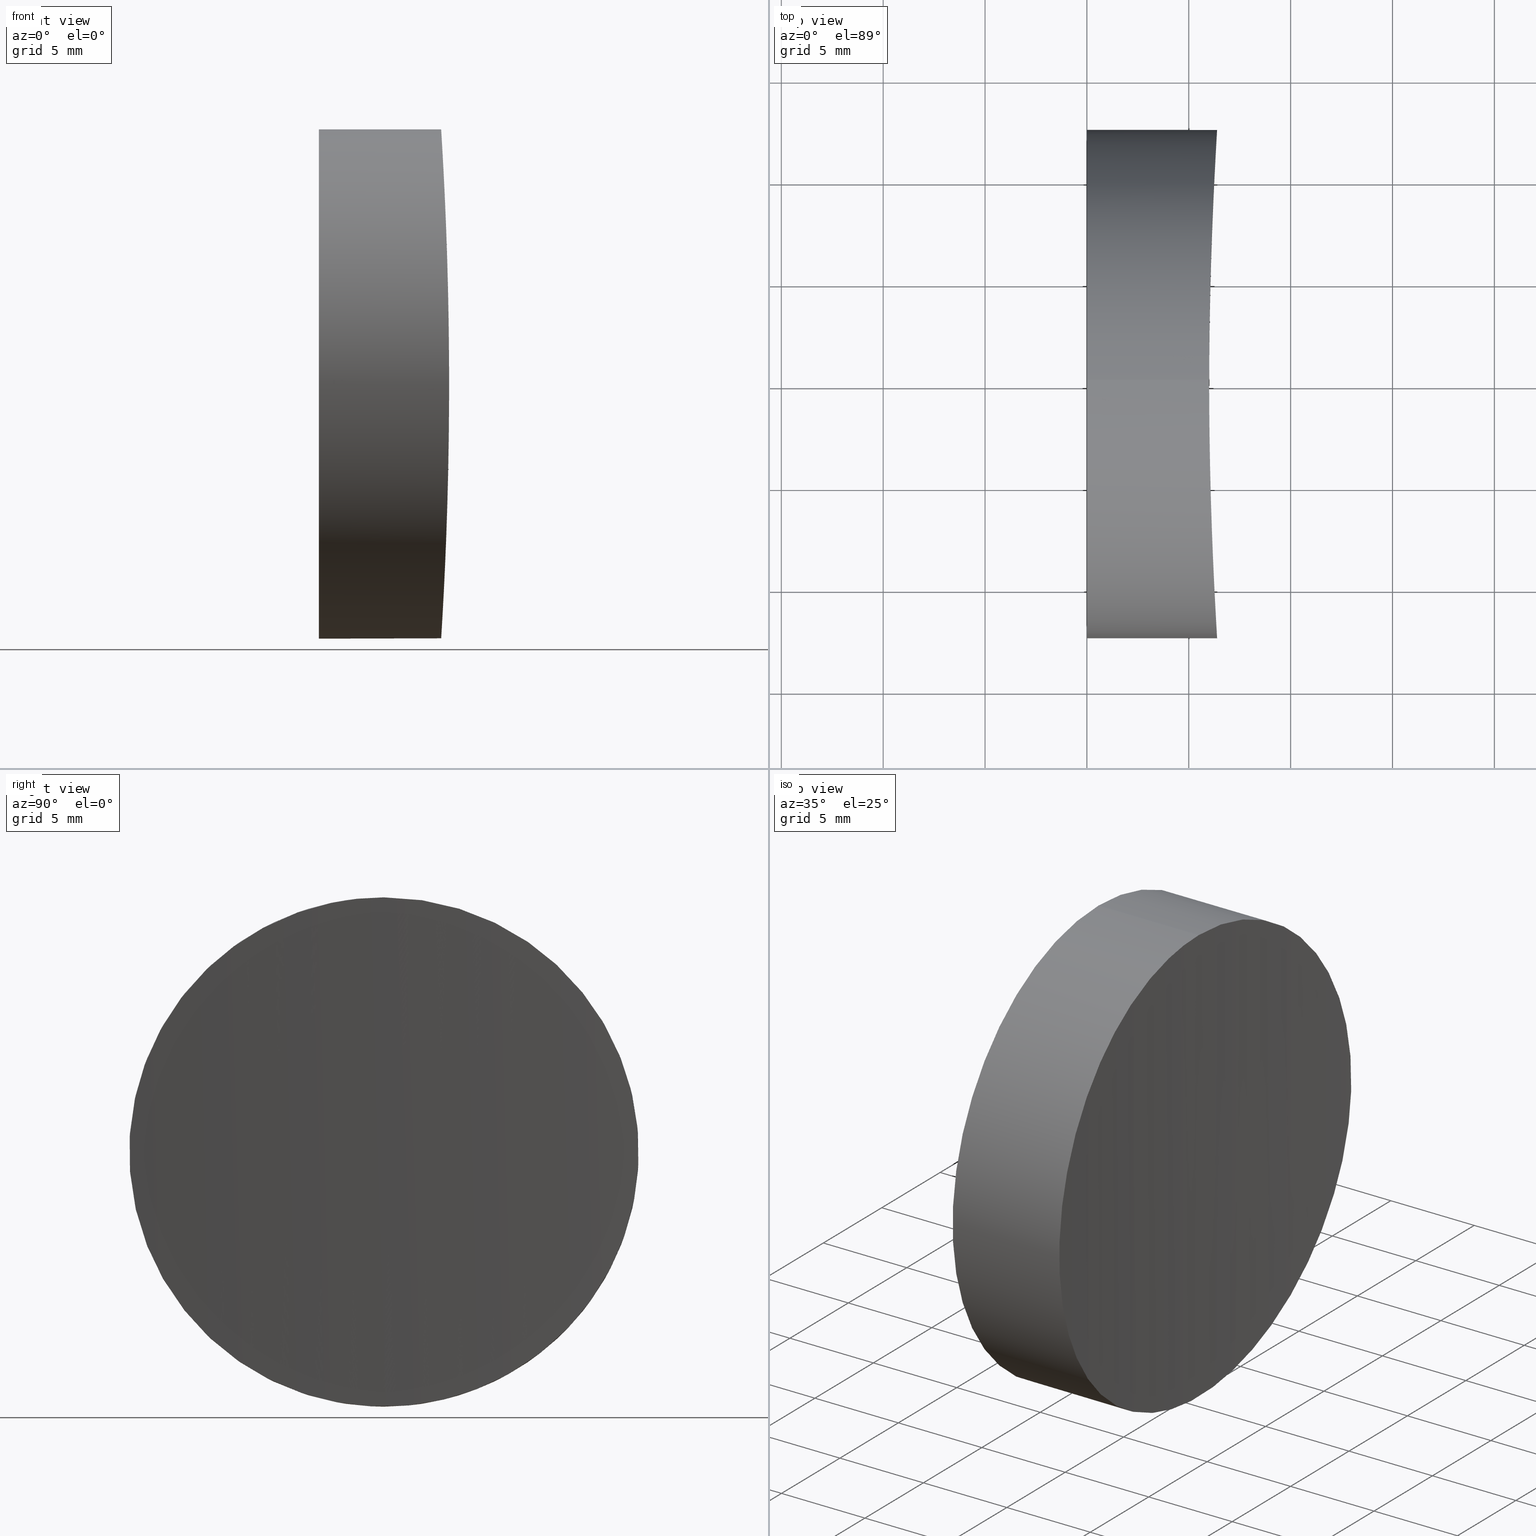
[diagram: canonical four-view strip — front | top / right | iso, engineering-drawing reading convention]
A machine part, canonical four-view strip (front | top / right | iso — engineering-drawing reading convention). The complete STEP part file that produces these views, byte-faithful:
ISO-10303-21;
HEADER;
FILE_DESCRIPTION (( 'STEP AP203' ),
    '1' );
FILE_NAME ('280011.STEP',
    '2022-07-05T10:00:19',
    ( '' ),
    ( '' ),
    'SwSTEP 2.0',
    'SolidWorks 2020',
    '' );
FILE_SCHEMA (( 'CONFIG_CONTROL_DESIGN' ));
ENDSEC;

DATA;
#1 = COORDINATED_UNIVERSAL_TIME_OFFSET ( 8, 0, .AHEAD. ) ;
#2 = CARTESIAN_POINT ( 'NONE',  ( 6.097124344311586341, -6.242635368739844814, -10.83727719118688171 ) ) ;
#3 = PERSON_AND_ORGANIZATION ( #116, #117 ) ;
#4 = CARTESIAN_POINT ( 'NONE',  ( 6.006322558949565682, 1.642385855301091935, -12.39849435308540926 ) ) ;
#5 = DATE_AND_TIME ( #168, #150 ) ;
#6 = CARTESIAN_POINT ( 'NONE',  ( 6.385955377215135620, 12.42010764118228749, 1.633293504442068445 ) ) ;
#7 = VERTEX_POINT ( 'NONE', #108 ) ;
#8 = MANIFOLD_SOLID_BREP ( '�г�-����1', #217 ) ;
#9 = CARTESIAN_POINT ( 'NONE',  ( 6.076449310142732152, -5.541154197611496635, 11.21218961334392716 ) ) ;
#10 = DIRECTION ( 'NONE',  ( -1.000000000000000000, -0.000000000000000000, -0.000000000000000000 ) ) ;
#11 = UNCERTAINTY_MEASURE_WITH_UNIT (LENGTH_MEASURE( 1.000000000000000082E-05 ), #110, 'distance_accuracy_value', 'NONE');
#12 = CC_DESIGN_APPROVAL ( #83, ( #90 ) ) ;
#13 = DATE_AND_TIME ( #69, #181 ) ;
#14 = FACE_OUTER_BOUND ( 'NONE', #143, .T. ) ;
#15 = COORDINATED_UNIVERSAL_TIME_OFFSET ( 8, 0, .AHEAD. ) ;
#16 = DIRECTION ( 'NONE',  ( 1.000000000000000000, 0.000000000000000000, 0.000000000000000000 ) ) ;
#17 = CARTESIAN_POINT ( 'NONE',  ( 6.066361212012791881, 5.165607069838403120, -11.39010407202158248 ) ) ;
#18 = CARTESIAN_POINT ( 'NONE',  ( 6.010098796989793435, 2.049340621478684898, -12.33762393279232406 ) ) ;
#19 = APPROVAL ( #142, 'δָ��' ) ;
#20 = DATE_AND_TIME ( #185, #72 ) ;
#21 = CYLINDRICAL_SURFACE ( 'NONE', #126, 200.0000000000000000 ) ;
#22 = CARTESIAN_POINT ( 'NONE',  ( 6.390979679797923474, 12.49956027233291245, 0.8221274762080637011 ) ) ;
#23 = CARTESIAN_POINT ( 'NONE',  ( 6.109071566344343118, 6.612967445553753265, -10.61528993956557976 ) ) ;
#24 = CARTESIAN_POINT ( 'NONE',  ( 6.000000000000006217, -6.505213034913026604E-16, 12.50000000000000000 ) ) ;
#25 = CARTESIAN_POINT ( 'NONE',  ( 6.026121852739023232, -3.255898834232719974, 12.07543384286811872 ) ) ;
#26 = ADVANCED_BREP_SHAPE_REPRESENTATION ( '280011', ( #8, #141 ), #53 ) ;
#27 = CARTESIAN_POINT ( 'NONE',  ( 6.039980745927377548, 4.018079192936921729, 11.84370772035140895 ) ) ;
#28 = CARTESIAN_POINT ( 'NONE',  ( 6.281964060546943784, 10.61877824392289860, 6.607602650338285422 ) ) ;
#29 = APPROVAL_PERSON_ORGANIZATION ( #73, #19, #154 ) ;
#30 = DIRECTION ( 'NONE',  ( 1.000000000000000000, 0.000000000000000000, 0.000000000000000000 ) ) ;
#31 = CARTESIAN_POINT ( 'NONE',  ( 0.000000000000000000, 0.000000000000000000, 0.000000000000000000 ) ) ;
#32 = CARTESIAN_POINT ( 'NONE',  ( 6.293402940502654808, 10.83109551004305615, -6.253466655951585018 ) ) ;
#33 = FACE_OUTER_BOUND ( 'NONE', #209, .T. ) ;
#34 = CARTESIAN_POINT ( 'NONE',  ( 6.039952967312963494, -4.016601708302640183, -11.84417358049147317 ) ) ;
#35 = PRODUCT_DEFINITION_SHAPE ( 'NONE', 'NONE',  #180 ) ;
#36 = APPROVAL_ROLE ( '' ) ;
#37 = EDGE_LOOP ( 'NONE', ( #192 ) ) ;
#38 = CARTESIAN_POINT ( 'NONE',  ( 6.001266261539560887, 0.8215538357438458839, -12.47978937386999299 ) ) ;
#39 = CARTESIAN_POINT ( 'NONE',  ( 6.108543999971804972, -6.597199518492526060, -10.62526231157210432 ) ) ;
#40 = CARTESIAN_POINT ( 'NONE',  ( 6.144850137163232695, -7.640987513956104316, 9.926693404809165955 ) ) ;
#41 = CARTESIAN_POINT ( 'NONE',  ( 6.019985152737989509, -2.856066431694121555, 12.17632345422418716 ) ) ;
#42 = APPLICATION_PROTOCOL_DEFINITION ( 'international standard', 'config_control_design', 1994, #206 ) ;
#43 = CC_DESIGN_SECURITY_CLASSIFICATION ( #47, ( #90 ) ) ;
#44 = CC_DESIGN_DATE_AND_TIME_ASSIGNMENT ( #5, #156, ( #47 ) ) ;
#45 = ADVANCED_FACE ( 'NONE', ( #33 ), #21, .F. ) ;
#46 = CARTESIAN_POINT ( 'NONE',  ( 6.220555341975614105, -9.393717978902861532, -8.256957110738921912 ) ) ;
#47 = SECURITY_CLASSIFICATION ( '', '', #224 ) ;
#48 = COORDINATED_UNIVERSAL_TIME_OFFSET ( 8, 0, .AHEAD. ) ;
#49 = DATE_AND_TIME ( #212, #210 ) ;
#50 = CARTESIAN_POINT ( 'NONE',  ( 0.000000000000000000, 0.000000000000000000, 0.000000000000000000 ) ) ;
#51 = SHAPE_DEFINITION_REPRESENTATION ( #35, #26 ) ;
#52 = CARTESIAN_POINT ( 'NONE',  ( 6.385971444981462852, -12.42033362492585091, 1.627435612433892009 ) ) ;
#53 =( GEOMETRIC_REPRESENTATION_CONTEXT ( 3 ) GLOBAL_UNCERTAINTY_ASSIGNED_CONTEXT ( ( #11 ) ) GLOBAL_UNIT_ASSIGNED_CONTEXT ( ( #110, #197, #62 ) ) REPRESENTATION_CONTEXT ( 'NONE', 'WORKASPACE' ) );
#54 = PERSON_AND_ORGANIZATION ( #116, #117 ) ;
#55 = CARTESIAN_POINT ( 'NONE',  ( 6.351186967018276341, -11.84759686586160932, 4.006553903359866275 ) ) ;
#56 = COORDINATED_UNIVERSAL_TIME_OFFSET ( 8, 0, .AHEAD. ) ;
#57 = CARTESIAN_POINT ( 'NONE',  ( 6.365021620572029803, 12.07847702984982696, 3.244630629442704972 ) ) ;
#58 = ADVANCED_FACE ( 'NONE', ( #14 ), #204, .F. ) ;
#59 = CARTESIAN_POINT ( 'NONE',  ( 6.315749155841221096, -11.23825969832238592, 5.533904632142050417 ) ) ;
#60 = CARTESIAN_POINT ( 'NONE',  ( 6.144182417520013040, -7.623717704013765584, -9.940115244581269494 ) ) ;
#61 = AXIS2_PLACEMENT_3D ( 'NONE', #93, #63, #163 ) ;
#62 =( NAMED_UNIT ( * ) SI_UNIT ( $, .STERADIAN. ) SOLID_ANGLE_UNIT ( ) );
#63 = DIRECTION ( 'NONE',  ( 1.000000000000000000, 0.000000000000000000, 0.000000000000000000 ) ) ;
#64 = EDGE_CURVE ( 'NONE', #199, #199, #79, .T. ) ;
#65 = CARTESIAN_POINT ( 'NONE',  ( 6.005113497937368372, 1.638208384774727966, 12.41892721327314142 ) ) ;
#66 = CARTESIAN_POINT ( 'NONE',  ( 6.182694615441885588, 8.551472928241855342, 9.126251027237062274 ) ) ;
#67 = CC_DESIGN_PERSON_AND_ORGANIZATION_ASSIGNMENT ( #68, #101, ( #180 ) ) ;
#68 = PERSON_AND_ORGANIZATION ( #116, #117 ) ;
#69 = CALENDAR_DATE ( 2022, 5, 7 ) ;
#70 = CARTESIAN_POINT ( 'NONE',  ( 6.371099449310838381, -12.17819579987978251, -2.847366099917766569 ) ) ;
#71 = CARTESIAN_POINT ( 'NONE',  ( 6.076424590534253767, 5.540285234612574605, -11.21264328395216658 ) ) ;
#72 = LOCAL_TIME ( 18, 0, 19.00000000000000000, #15 ) ;
#73 = PERSON_AND_ORGANIZATION ( #116, #117 ) ;
#74 = CARTESIAN_POINT ( 'NONE',  ( 6.025751098661856098, -3.233152477569171790, -12.08156704011281235 ) ) ;
#75 = PRODUCT ( '280011', '280011', '', ( #167 ) ) ;
#76 = CARTESIAN_POINT ( 'NONE',  ( 6.207774879070130147, -9.118668430361568156, -8.559550527485082938 ) ) ;
#77 = CARTESIAN_POINT ( 'NONE',  ( 6.170205118683169232, -8.269572538028112874, 9.409007910802095864 ) ) ;
#78 = CARTESIAN_POINT ( 'NONE',  ( 6.040377744309539665, -4.037608925579462493, 11.83700527482875664 ) ) ;
#79 = B_SPLINE_CURVE_WITH_KNOTS ( 'NONE', 3,
 ( #138, #207, #65, #183, #200, #27, #149, #164, #131, #97, #80, #223, #66, #113, #221, #28, #94, #162, #98, #153, #57, #144, #6, #22, #184, #193, #160, #176, #173, #190, #215, #102, #32, #89, #140, #194, #105, #170, #23, #86, #71, #17, #159, #169, #18, #4, #38, #115, #91, #155, #157, #74, #34, #213, #123, #2, #39, #60, #106, #76, #46, #125, #146, #196, #87, #226, #103, #201, #70, #139, #208, #211, #52, #121, #120, #55, #107, #59, #128, #218, #216, #214, #95, #77, #40, #179, #219, #9, #195, #78, #25, #41, #124, #178, #24 ),
 .UNSPECIFIED., .T., .F.,
 ( 4, 2, 2, 2, 2, 2, 2, 2, 2, 1, 2, 2, 2, 2, 2, 2, 2, 2, 2, 2, 2, 2, 2, 2, 2, 2, 2, 1, 2, 2, 2, 2, 2, 2, 2, 2, 2, 2, 2, 2, 2, 2, 2, 2, 2, 1, 2, 2, 4 ),
 ( 0.000000000000000000, 0.002442859108957555567, 0.003664288663436332267, 0.004885718217915109400, 0.007328577326872661064, 0.008550006881351436896, 0.009771436435830211861, 0.01221429554478776699, 0.01343572509926654196, 0.01465715465374531866, 0.01587858420822409536, 0.01710001376270287032, 0.01954287287166042025, 0.02076430242613919869, 0.02198573198061797018, 0.02442859108957552011, 0.02565002064405429508, 0.02687145019853306657, 0.02931430930749060956, 0.03175716841644815602, 0.03297859797092692058, 0.03420002752540569207, 0.03664288663436323507, 0.03786431618884199962, 0.03908574574332077112, 0.04152860485227831411, 0.04275003440675707173, 0.04397146396123584322, 0.04519289351571461472, 0.04641432307019338621, 0.04885718217915091532, 0.05007861173362967988, 0.05130004128810845138, 0.05374290039706598743, 0.05496432995154475892, 0.05618575950602353042, 0.05862861861498106647, 0.06107147772393860252, 0.06229290727841737402, 0.06351433683289614551, 0.06595719594185367463, 0.06717862549633245306, 0.06840005505081121762, 0.07084291415976874673, 0.07206434371424752516, 0.07328577326872628972, 0.07450720282320505428, 0.07572863237768381883, 0.07817149148664134795 ),
 .UNSPECIFIED. ) ;
#80 = CARTESIAN_POINT ( 'NONE',  ( 6.144639559500174819, 7.611599375802039269, 9.923871323583089321 ) ) ;
#81 = CC_DESIGN_APPROVAL ( #148, ( #180 ) ) ;
#82 = PERSON_AND_ORGANIZATION ( #116, #117 ) ;
#83 = APPROVAL ( #186, 'δָ��' ) ;
#84 = PERSON_AND_ORGANIZATION ( #116, #117 ) ;
#85 = DIRECTION ( 'NONE',  ( 0.000000000000000000, 0.000000000000000000, -1.000000000000000000 ) ) ;
#86 = CARTESIAN_POINT ( 'NONE',  ( 6.097766140980434457, 6.263199115392590777, -10.82545457405688438 ) ) ;
#87 = CARTESIAN_POINT ( 'NONE',  ( 6.315203615347517285, -11.22858467466373433, -5.553278164282084539 ) ) ;
#88 = PERSON_AND_ORGANIZATION ( #116, #117 ) ;
#89 = CARTESIAN_POINT ( 'NONE',  ( 6.282090142489225926, 10.62109989645256825, -6.603638583095910342 ) ) ;
#90 = PRODUCT_DEFINITION_FORMATION_WITH_SPECIFIED_SOURCE ( '�κ�', '', #75, .NOT_KNOWN. ) ;
#91 = CARTESIAN_POINT ( 'NONE',  ( 5.999981746799992521, -0.8113520384242330907, -12.50029205121888154 ) ) ;
#92 = FACE_OUTER_BOUND ( 'NONE', #172, .T. ) ;
#93 = CARTESIAN_POINT ( 'NONE',  ( 0.000000000000000000, 0.000000000000000000, 0.000000000000000000 ) ) ;
#94 = CARTESIAN_POINT ( 'NONE',  ( 6.293425959801821179, 10.83150820231072053, 6.252658508602384480 ) ) ;
#95 = CARTESIAN_POINT ( 'NONE',  ( 6.208475394077268561, -9.133996042734173315, 8.543209657273299840 ) ) ;
#96 = AXIS2_PLACEMENT_3D ( 'NONE', #50, #16, #85 ) ;
#97 = CARTESIAN_POINT ( 'NONE',  ( 6.132269191720466139, 7.280500537957785845, 10.16912510648113255 ) ) ;
#98 = CARTESIAN_POINT ( 'NONE',  ( 6.334500408928933624, 11.56550003153557071, 4.794310998021909853 ) ) ;
#99 = PERSON_AND_ORGANIZATION_ROLE ( 'design_owner' ) ;
#100 = DIRECTION ( 'NONE',  ( -0.000000000000000000, -0.000000000000000000, 1.000000000000000000 ) ) ;
#101 = PERSON_AND_ORGANIZATION_ROLE ( 'creator' ) ;
#102 = CARTESIAN_POINT ( 'NONE',  ( 6.314762999130083543, 11.21800619265840560, -5.529449540980635014 ) ) ;
#103 = CARTESIAN_POINT ( 'NONE',  ( 6.350723281694882871, -11.83979049203640521, -4.029651848360761512 ) ) ;
#104 = DATE_TIME_ROLE ( 'creation_date' ) ;
#105 = CARTESIAN_POINT ( 'NONE',  ( 6.169787676159771195, 8.259961196644242776, -9.418269407398465631 ) ) ;
#106 = CARTESIAN_POINT ( 'NONE',  ( 6.169538804769127971, -8.253490737991240778, -9.423055095862682862 ) ) ;
#107 = CARTESIAN_POINT ( 'NONE',  ( 6.342942188601183418, -11.70828318566468340, 4.397072915636809576 ) ) ;
#108 = CARTESIAN_POINT ( 'NONE',  ( 0.000000000000000000, 0.000000000000000000, -12.50000000000000000 ) ) ;
#109 = DIRECTION ( 'NONE',  ( 0.000000000000000000, 0.000000000000000000, 1.000000000000000000 ) ) ;
#110 =( LENGTH_UNIT ( ) NAMED_UNIT ( * ) SI_UNIT ( .MILLI., .METRE. ) );
#111 = APPROVAL_PERSON_ORGANIZATION ( #54, #83, #36 ) ;
#112 = CC_DESIGN_PERSON_AND_ORGANIZATION_ASSIGNMENT ( #88, #119, ( #90 ) ) ;
#113 = CARTESIAN_POINT ( 'NONE',  ( 6.220945563414844948, 9.416065525302705908, 8.261494915667572769 ) ) ;
#114 = APPLICATION_CONTEXT ( 'configuration controlled 3d designs of mechanical parts and assemblies' ) ;
#115 = CARTESIAN_POINT ( 'NONE',  ( 6.000009202100902606, 0.4124065869083735625, -12.49985276637608500 ) ) ;
#116 = PERSON ( 'δָ��', 'δָ��', 'δָ��', ('δָ��'), ('δָ��'), ('δָ��') ) ;
#117 = ORGANIZATION ( 'δָ��', 'δָ��', '' ) ;
#118 = APPROVAL_DATE_TIME ( #13, #148 ) ;
#119 = PERSON_AND_ORGANIZATION_ROLE ( 'creator' ) ;
#120 = CARTESIAN_POINT ( 'NONE',  ( 6.365394416594824634, -12.08463282573025310, 3.221750323005333261 ) ) ;
#121 = CARTESIAN_POINT ( 'NONE',  ( 6.371405989140608739, -12.18321484982612368, 2.825789169373144727 ) ) ;
#122 = DATE_AND_TIME ( #188, #130 ) ;
#123 = CARTESIAN_POINT ( 'NONE',  ( 6.075900962279718875, -5.521305617014681033, -11.22195426604400836 ) ) ;
#124 = CARTESIAN_POINT ( 'NONE',  ( 6.005116410120042048, -1.643275072498878497, 12.41891784064393534 ) ) ;
#125 = CARTESIAN_POINT ( 'NONE',  ( 6.245814898191454745, -9.916349108830331716, -7.621371172403599736 ) ) ;
#126 = AXIS2_PLACEMENT_3D ( 'NONE', #202, #100, #30 ) ;
#127 = CARTESIAN_POINT ( 'NONE',  ( 6.000000000000005329, 0.000000000000000000, 12.50000000000000000 ) ) ;
#128 = CARTESIAN_POINT ( 'NONE',  ( 6.294268661512817609, -10.85478282651048154, 6.252199513020952892 ) ) ;
#129 = EDGE_CURVE ( 'NONE', #7, #7, #152, .T. ) ;
#130 = LOCAL_TIME ( 18, 0, 19.00000000000000000, #1 ) ;
#131 = CARTESIAN_POINT ( 'NONE',  ( 6.096885206911291100, 6.261527142603822149, 10.84944477382643058 ) ) ;
#132 = CC_DESIGN_PERSON_AND_ORGANIZATION_ASSIGNMENT ( #225, #99, ( #75 ) ) ;
#133 = CC_DESIGN_PERSON_AND_ORGANIZATION_ASSIGNMENT ( #3, #135, ( #47 ) ) ;
#134 = ORIENTED_EDGE ( 'NONE', *, *, #129, .T. ) ;
#135 = PERSON_AND_ORGANIZATION_ROLE ( 'classification_officer' ) ;
#136 = ORIENTED_EDGE ( 'NONE', *, *, #64, .F. ) ;
#137 = DIRECTION ( 'NONE',  ( 0.000000000000000000, 0.000000000000000000, 1.000000000000000000 ) ) ;
#138 = CARTESIAN_POINT ( 'NONE',  ( 6.000000000000006217, -6.505213034913026604E-16, 12.50000000000000000 ) ) ;
#139 = CARTESIAN_POINT ( 'NONE',  ( 6.385795237105739375, -12.41752024141594646, -1.648932273535532067 ) ) ;
#140 = CARTESIAN_POINT ( 'NONE',  ( 6.246780651214693947, 9.942659767333136500, -7.619497289018853259 ) ) ;
#141 = AXIS2_PLACEMENT_3D ( 'NONE', #31, #137, #171 ) ;
#142 = APPROVAL_STATUS ( 'not_yet_approved' ) ;
#143 = EDGE_LOOP ( 'NONE', ( #189 ) ) ;
#144 = CARTESIAN_POINT ( 'NONE',  ( 6.371162432698228351, 12.17923161161121115, 2.843500962419747147 ) ) ;
#145 = APPLICATION_PROTOCOL_DEFINITION ( 'international standard', 'config_control_design', 1994, #114 ) ;
#146 = CARTESIAN_POINT ( 'NONE',  ( 6.258227687250402127, -10.16248793108136184, -7.289776459944785181 ) ) ;
#147 = FACE_OUTER_BOUND ( 'NONE', #37, .T. ) ;
#148 = APPROVAL ( #191, 'δָ��' ) ;
#149 = CARTESIAN_POINT ( 'NONE',  ( 6.048232162118039490, 4.408380894612057510, 11.70401589813677568 ) ) ;
#150 = LOCAL_TIME ( 18, 0, 19.00000000000000000, #158 ) ;
#151 = PERSON_AND_ORGANIZATION_ROLE ( 'design_supplier' ) ;
#152 = CIRCLE ( 'NONE', #61, 12.50000000000000000 ) ;
#153 = CARTESIAN_POINT ( 'NONE',  ( 6.350770242039851077, 11.84057671604396234, 4.027155114172416894 ) ) ;
#154 = APPROVAL_ROLE ( '' ) ;
#155 = CARTESIAN_POINT ( 'NONE',  ( 6.004955564413388736, -1.622314894908982508, -12.42148057517924720 ) ) ;
#156 = DATE_TIME_ROLE ( 'classification_date' ) ;
#157 = CARTESIAN_POINT ( 'NONE',  ( 6.019635398204366439, -2.831289429838236948, -12.18205941082771915 ) ) ;
#158 = COORDINATED_UNIVERSAL_TIME_OFFSET ( 8, 0, .AHEAD. ) ;
#159 = CARTESIAN_POINT ( 'NONE',  ( 6.039168420357645672, 4.029825752947421513, -11.86096004068260967 ) ) ;
#160 = CARTESIAN_POINT ( 'NONE',  ( 6.384776705598578239, 12.40017137748223952, -1.629529267848795371 ) ) ;
#161 = CARTESIAN_POINT ( 'NONE',  ( 10.00000000000000000, 0.000000000000000000, 0.000000000000000000 ) ) ;
#162 = CARTESIAN_POINT ( 'NONE',  ( 6.314713509433305560, 11.21710648707044733, 5.531168811679284758 ) ) ;
#163 = DIRECTION ( 'NONE',  ( 0.000000000000000000, 0.000000000000000000, -1.000000000000000000 ) ) ;
#164 = CARTESIAN_POINT ( 'NONE',  ( 6.075411248514271279, 5.543640227705896706, 11.23340082294923903 ) ) ;
#165 = CC_DESIGN_DATE_AND_TIME_ASSIGNMENT ( #49, #104, ( #180 ) ) ;
#166 = AXIS2_PLACEMENT_3D ( 'NONE', #161, #10, #109 ) ;
#167 = MECHANICAL_CONTEXT ( 'NONE', #206, 'mechanical' ) ;
#168 = CALENDAR_DATE ( 2022, 5, 7 ) ;
#169 = CARTESIAN_POINT ( 'NONE',  ( 6.024814962347853076, 3.250675290964418096, -12.09752682626178988 ) ) ;
#170 = CARTESIAN_POINT ( 'NONE',  ( 6.144370844092779116, 7.627970156974122062, -9.936143468785854083 ) ) ;
#171 = DIRECTION ( 'NONE',  ( 1.000000000000000000, 0.000000000000000000, 0.000000000000000000 ) ) ;
#172 = EDGE_LOOP ( 'NONE', ( #134 ) ) ;
#173 = CARTESIAN_POINT ( 'NONE',  ( 6.366318451218281105, 12.10036008338214941, -3.240272240373918589 ) ) ;
#174 = ADVANCED_FACE ( 'NONE', ( #147, #92 ), #182, .T. ) ;
#175 = APPROVAL_DATE_TIME ( #20, #83 ) ;
#176 = CARTESIAN_POINT ( 'NONE',  ( 6.381008053514196199, 12.33954760053261168, -2.037789144882563352 ) ) ;
#177 = APPROVAL_PERSON_ORGANIZATION ( #84, #148, #203 ) ;
#178 = CARTESIAN_POINT ( 'NONE',  ( 6.000000000000007105, -0.8260259973617465334, 12.50000000000000000 ) ) ;
#179 = CARTESIAN_POINT ( 'NONE',  ( 6.109235795345368203, -6.618065419781580694, 10.61224260629533589 ) ) ;
#180 = PRODUCT_DEFINITION ( 'δ֪', '', #90, #222 ) ;
#181 = LOCAL_TIME ( 18, 0, 19.00000000000000000, #48 ) ;
#182 = CYLINDRICAL_SURFACE ( 'NONE', #166, 12.50000000000000000 ) ;
#183 = CARTESIAN_POINT ( 'NONE',  ( 6.019717395050649955, 2.836574988575808920, 12.18071066458426088 ) ) ;
#184 = CARTESIAN_POINT ( 'NONE',  ( 6.391020815680056977, 12.50021715978796699, -0.4009938968952218574 ) ) ;
#185 = CALENDAR_DATE ( 2022, 5, 7 ) ;
#186 = APPROVAL_STATUS ( 'not_yet_approved' ) ;
#187 = PRODUCT_RELATED_PRODUCT_CATEGORY ( 'detail', '', ( #75 ) ) ;
#188 = CALENDAR_DATE ( 2022, 5, 7 ) ;
#189 = ORIENTED_EDGE ( 'NONE', *, *, #129, .F. ) ;
#190 = CARTESIAN_POINT ( 'NONE',  ( 6.351973587240189900, 11.86439217507230737, -4.019561980558244763 ) ) ;
#191 = APPROVAL_STATUS ( 'not_yet_approved' ) ;
#192 = ORIENTED_EDGE ( 'NONE', *, *, #64, .T. ) ;
#193 = CARTESIAN_POINT ( 'NONE',  ( 6.389785497326742281, 12.48054034332813345, -0.8097706862219898882 ) ) ;
#194 = CARTESIAN_POINT ( 'NONE',  ( 6.221405656160015951, 9.426237762785456553, -8.250866575084330634 ) ) ;
#195 = CARTESIAN_POINT ( 'NONE',  ( 6.056650492501939098, -4.804260919432282506, 11.56137283975097496 ) ) ;
#196 = CARTESIAN_POINT ( 'NONE',  ( 6.293686440874227017, -10.84414104366250164, -6.270774447108776961 ) ) ;
#197 =( NAMED_UNIT ( * ) PLANE_ANGLE_UNIT ( ) SI_UNIT ( $, .RADIAN. ) );
#198 = CC_DESIGN_PERSON_AND_ORGANIZATION_ASSIGNMENT ( #82, #151, ( #90 ) ) ;
#199 = VERTEX_POINT ( 'NONE', #127 ) ;
#200 = CARTESIAN_POINT ( 'NONE',  ( 6.025741685834439920, 3.232688074836880698, 12.08172590223067111 ) ) ;
#201 = CARTESIAN_POINT ( 'NONE',  ( 6.365041031534792282, -12.07880336361592377, -3.243646438410570543 ) ) ;
#202 = CARTESIAN_POINT ( 'NONE',  ( 206.0000000000000284, 0.000000000000000000, -12.50000000000000000 ) ) ;
#203 = APPROVAL_ROLE ( '' ) ;
#204 = PLANE ( 'NONE',  #96 ) ;
#205 = APPROVAL_DATE_TIME ( #122, #19 ) ;
#206 = APPLICATION_CONTEXT ( 'configuration controlled 3d designs of mechanical parts and assemblies' ) ;
#207 = CARTESIAN_POINT ( 'NONE',  ( 6.000000000000005329, 0.8260259973617569695, 12.49999999999999822 ) ) ;
#208 = CARTESIAN_POINT ( 'NONE',  ( 6.390955392664738888, -12.49917243757060170, -0.8372790682234111381 ) ) ;
#209 = EDGE_LOOP ( 'NONE', ( #136 ) ) ;
#210 = LOCAL_TIME ( 18, 0, 19.00000000000000000, #56 ) ;
#211 = CARTESIAN_POINT ( 'NONE',  ( 6.391058264339077866, -12.50081516729230735, 0.8123841550671995204 ) ) ;
#212 = CALENDAR_DATE ( 2022, 5, 7 ) ;
#213 = CARTESIAN_POINT ( 'NONE',  ( 6.056171632605895638, -4.784371914115884472, -11.56961946890964654 ) ) ;
#214 = CARTESIAN_POINT ( 'NONE',  ( 6.221272958524182606, -9.408968428934016970, 8.239625998569206189 ) ) ;
#215 = CARTESIAN_POINT ( 'NONE',  ( 6.324817362301918600, 11.39499897544541795, -5.154771420680490657 ) ) ;
#216 = CARTESIAN_POINT ( 'NONE',  ( 6.246576182420433554, -9.931673492599990993, 7.601446252481263599 ) ) ;
#217 = CLOSED_SHELL ( 'NONE', ( #174, #58, #45 ) ) ;
#218 = CARTESIAN_POINT ( 'NONE',  ( 6.258907528941283438, -10.17582126320278491, 7.271123631164695844 ) ) ;
#219 = CARTESIAN_POINT ( 'NONE',  ( 6.097758334141318848, -6.262916707723694465, 10.82559346025070468 ) ) ;
#220 = CC_DESIGN_APPROVAL ( #19, ( #47 ) ) ;
#221 = CARTESIAN_POINT ( 'NONE',  ( 6.246310768997213714, 9.933426509973417140, 7.632332178595791383 ) ) ;
#222 = DESIGN_CONTEXT ( 'detailed design', #114, 'design' ) ;
#223 = CARTESIAN_POINT ( 'NONE',  ( 6.169909023205313758, 8.248410881240873849, 9.401243802762047963 ) ) ;
#224 = SECURITY_CLASSIFICATION_LEVEL ( 'unclassified' ) ;
#225 = PERSON_AND_ORGANIZATION ( #116, #117 ) ;
#226 = CARTESIAN_POINT ( 'NONE',  ( 6.342445279450523721, -11.69981188972070818, -4.419491462447509456 ) ) ;
ENDSEC;
END-ISO-10303-21;
